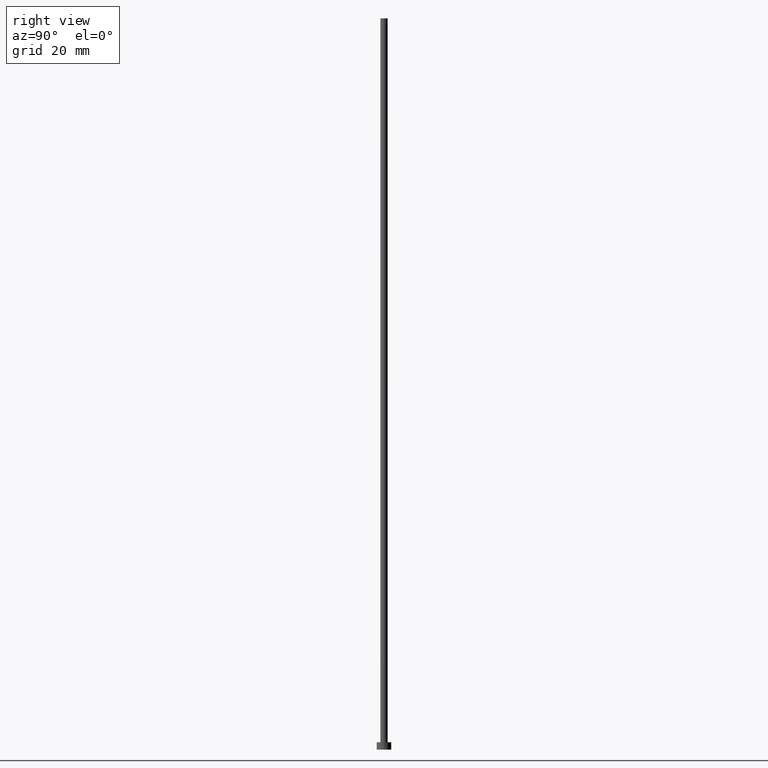
[diagram: clean part render]
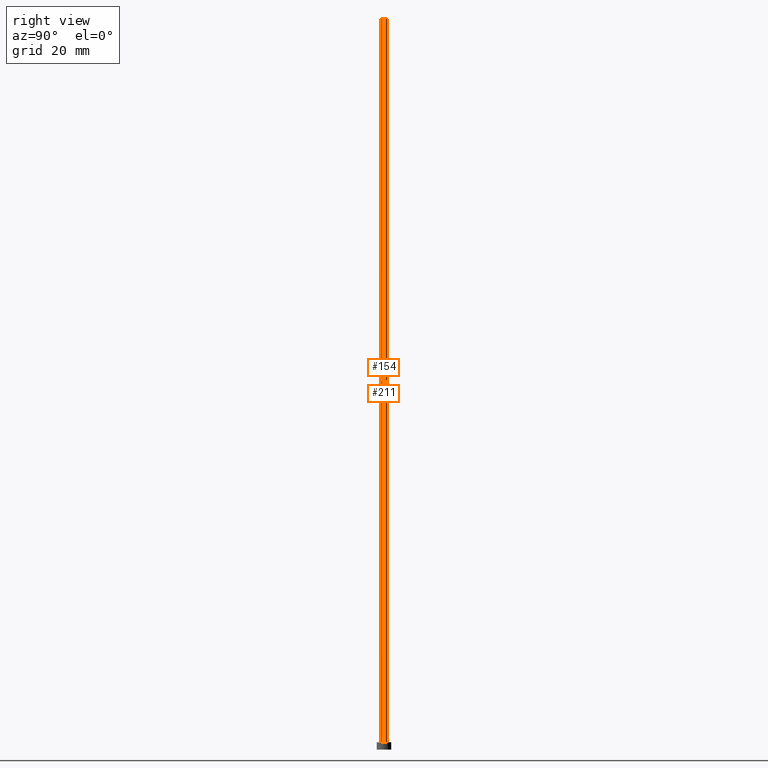
[diagram: same view with one multi-face feature highlighted, each face labeled with its STEP entity id]
A machine part, right view. The highlighted faces form ONE feature: a constant-radius fillet chain: 2 tangent blend faces with common blend radius 1 mm. The faces share edges in the B-rep.
Their STEP definitions:
[1] entity #154 (Cylinder):
#10 = VECTOR ( 'NONE', #127, 1000.000000000000000 ) ;
#13 = CARTESIAN_POINT ( 'NONE',  ( 1.000000000000000000, 1.224646799147353207E-16, 200.0000000000000000 ) ) ;
#17 = ORIENTED_EDGE ( 'NONE', *, *, #240, .F. ) ;
#22 = EDGE_CURVE ( 'NONE', #223, #41, #97, .T. ) ;
#29 = CARTESIAN_POINT ( 'NONE',  ( 1.000000000000000000, 1.224646799147353207E-16, 200.0000000000000000 ) ) ;
#34 = CARTESIAN_POINT ( 'NONE',  ( -1.000000000000000000, 0.000000000000000000, 200.0000000000000000 ) ) ;
#41 = VERTEX_POINT ( 'NONE', #29 ) ;
#51 = DIRECTION ( 'NONE',  ( -1.000000000000000000, 0.000000000000000000, 0.000000000000000000 ) ) ;
#53 = LINE ( 'NONE', #34, #10 ) ;
#71 = DIRECTION ( 'NONE',  ( 0.000000000000000000, 0.000000000000000000, 1.000000000000000000 ) ) ;
#82 = DIRECTION ( 'NONE',  ( 0.000000000000000000, 0.000000000000000000, 1.000000000000000000 ) ) ;
#85 = DIRECTION ( 'NONE',  ( 1.000000000000000000, 0.000000000000000000, 0.000000000000000000 ) ) ;
#87 = AXIS2_PLACEMENT_3D ( 'NONE', #91, #71, #202 ) ;
#90 = CYLINDRICAL_SURFACE ( 'NONE', #189, 1.000000000000000000 ) ;
#91 = CARTESIAN_POINT ( 'NONE',  ( 0.000000000000000000, 0.000000000000000000, 2.000000000000000000 ) ) ;
#94 = EDGE_LOOP ( 'NONE', ( #17, #232, #250, #235 ) ) ;
#97 = CIRCLE ( 'NONE', #246, 1.000000000000000000 ) ;
#108 = CARTESIAN_POINT ( 'NONE',  ( 1.000000000000000000, 1.224646799147353207E-16, 2.000000000000000000 ) ) ;
#116 = EDGE_CURVE ( 'NONE', #230, #136, #124, .T. ) ;
#124 = CIRCLE ( 'NONE', #87, 1.000000000000000000 ) ;
#126 = CARTESIAN_POINT ( 'NONE',  ( -1.000000000000000000, 0.000000000000000000, 200.0000000000000000 ) ) ;
#127 = DIRECTION ( 'NONE',  ( -0.000000000000000000, -0.000000000000000000, -1.000000000000000000 ) ) ;
#136 = VERTEX_POINT ( 'NONE', #108 ) ;
#153 = DIRECTION ( 'NONE',  ( -0.000000000000000000, -0.000000000000000000, -1.000000000000000000 ) ) ;
#154 = ADVANCED_FACE ( 'NONE', ( #181 ), #90, .T. ) ;
#164 = CARTESIAN_POINT ( 'NONE',  ( 0.000000000000000000, 0.000000000000000000, 200.0000000000000000 ) ) ;
#181 = FACE_OUTER_BOUND ( 'NONE', #94, .T. ) ;
#184 = VECTOR ( 'NONE', #153, 1000.000000000000000 ) ;
#189 = AXIS2_PLACEMENT_3D ( 'NONE', #164, #245, #51 ) ;
#190 = LINE ( 'NONE', #13, #184 ) ;
#194 = EDGE_CURVE ( 'NONE', #223, #230, #53, .T. ) ;
#202 = DIRECTION ( 'NONE',  ( 1.000000000000000000, 0.000000000000000000, 0.000000000000000000 ) ) ;
#210 = CARTESIAN_POINT ( 'NONE',  ( -1.000000000000000000, 0.000000000000000000, 2.000000000000000000 ) ) ;
#223 = VERTEX_POINT ( 'NONE', #126 ) ;
#230 = VERTEX_POINT ( 'NONE', #210 ) ;
#231 = CARTESIAN_POINT ( 'NONE',  ( 0.000000000000000000, 0.000000000000000000, 200.0000000000000000 ) ) ;
#232 = ORIENTED_EDGE ( 'NONE', *, *, #22, .F. ) ;
#235 = ORIENTED_EDGE ( 'NONE', *, *, #116, .T. ) ;
#240 = EDGE_CURVE ( 'NONE', #41, #136, #190, .T. ) ;
#245 = DIRECTION ( 'NONE',  ( -0.000000000000000000, -0.000000000000000000, -1.000000000000000000 ) ) ;
#246 = AXIS2_PLACEMENT_3D ( 'NONE', #231, #82, #85 ) ;
#250 = ORIENTED_EDGE ( 'NONE', *, *, #194, .T. ) ;
[2] entity #211 (Cylinder):
#10 = VECTOR ( 'NONE', #127, 1000.000000000000000 ) ;
#13 = CARTESIAN_POINT ( 'NONE',  ( 1.000000000000000000, 1.224646799147353207E-16, 200.0000000000000000 ) ) ;
#29 = CARTESIAN_POINT ( 'NONE',  ( 1.000000000000000000, 1.224646799147353207E-16, 200.0000000000000000 ) ) ;
#34 = CARTESIAN_POINT ( 'NONE',  ( -1.000000000000000000, 0.000000000000000000, 200.0000000000000000 ) ) ;
#39 = EDGE_LOOP ( 'NONE', ( #155, #170, #217, #101 ) ) ;
#41 = VERTEX_POINT ( 'NONE', #29 ) ;
#53 = LINE ( 'NONE', #34, #10 ) ;
#54 = CIRCLE ( 'NONE', #242, 1.000000000000000000 ) ;
#56 = FACE_OUTER_BOUND ( 'NONE', #39, .T. ) ;
#70 = EDGE_CURVE ( 'NONE', #136, #230, #233, .T. ) ;
#78 = DIRECTION ( 'NONE',  ( -1.000000000000000000, 0.000000000000000000, 0.000000000000000000 ) ) ;
#88 = DIRECTION ( 'NONE',  ( 1.000000000000000000, 0.000000000000000000, 0.000000000000000000 ) ) ;
#95 = EDGE_CURVE ( 'NONE', #41, #223, #54, .T. ) ;
#101 = ORIENTED_EDGE ( 'NONE', *, *, #194, .F. ) ;
#108 = CARTESIAN_POINT ( 'NONE',  ( 1.000000000000000000, 1.224646799147353207E-16, 2.000000000000000000 ) ) ;
#115 = AXIS2_PLACEMENT_3D ( 'NONE', #253, #187, #78 ) ;
#119 = CARTESIAN_POINT ( 'NONE',  ( 0.000000000000000000, 0.000000000000000000, 2.000000000000000000 ) ) ;
#120 = DIRECTION ( 'NONE',  ( 0.000000000000000000, 0.000000000000000000, 1.000000000000000000 ) ) ;
#126 = CARTESIAN_POINT ( 'NONE',  ( -1.000000000000000000, 0.000000000000000000, 200.0000000000000000 ) ) ;
#127 = DIRECTION ( 'NONE',  ( -0.000000000000000000, -0.000000000000000000, -1.000000000000000000 ) ) ;
#136 = VERTEX_POINT ( 'NONE', #108 ) ;
#147 = DIRECTION ( 'NONE',  ( 0.000000000000000000, 0.000000000000000000, 1.000000000000000000 ) ) ;
#153 = DIRECTION ( 'NONE',  ( -0.000000000000000000, -0.000000000000000000, -1.000000000000000000 ) ) ;
#155 = ORIENTED_EDGE ( 'NONE', *, *, #95, .F. ) ;
#165 = CARTESIAN_POINT ( 'NONE',  ( 0.000000000000000000, 0.000000000000000000, 200.0000000000000000 ) ) ;
#170 = ORIENTED_EDGE ( 'NONE', *, *, #240, .T. ) ;
#171 = AXIS2_PLACEMENT_3D ( 'NONE', #119, #120, #226 ) ;
#184 = VECTOR ( 'NONE', #153, 1000.000000000000000 ) ;
#187 = DIRECTION ( 'NONE',  ( -0.000000000000000000, -0.000000000000000000, -1.000000000000000000 ) ) ;
#190 = LINE ( 'NONE', #13, #184 ) ;
#194 = EDGE_CURVE ( 'NONE', #223, #230, #53, .T. ) ;
#210 = CARTESIAN_POINT ( 'NONE',  ( -1.000000000000000000, 0.000000000000000000, 2.000000000000000000 ) ) ;
#211 = ADVANCED_FACE ( 'NONE', ( #56 ), #251, .T. ) ;
#217 = ORIENTED_EDGE ( 'NONE', *, *, #70, .T. ) ;
#223 = VERTEX_POINT ( 'NONE', #126 ) ;
#226 = DIRECTION ( 'NONE',  ( 1.000000000000000000, 0.000000000000000000, 0.000000000000000000 ) ) ;
#230 = VERTEX_POINT ( 'NONE', #210 ) ;
#233 = CIRCLE ( 'NONE', #171, 1.000000000000000000 ) ;
#240 = EDGE_CURVE ( 'NONE', #41, #136, #190, .T. ) ;
#242 = AXIS2_PLACEMENT_3D ( 'NONE', #165, #147, #88 ) ;
#251 = CYLINDRICAL_SURFACE ( 'NONE', #115, 1.000000000000000000 ) ;
#253 = CARTESIAN_POINT ( 'NONE',  ( 0.000000000000000000, 0.000000000000000000, 200.0000000000000000 ) ) ;